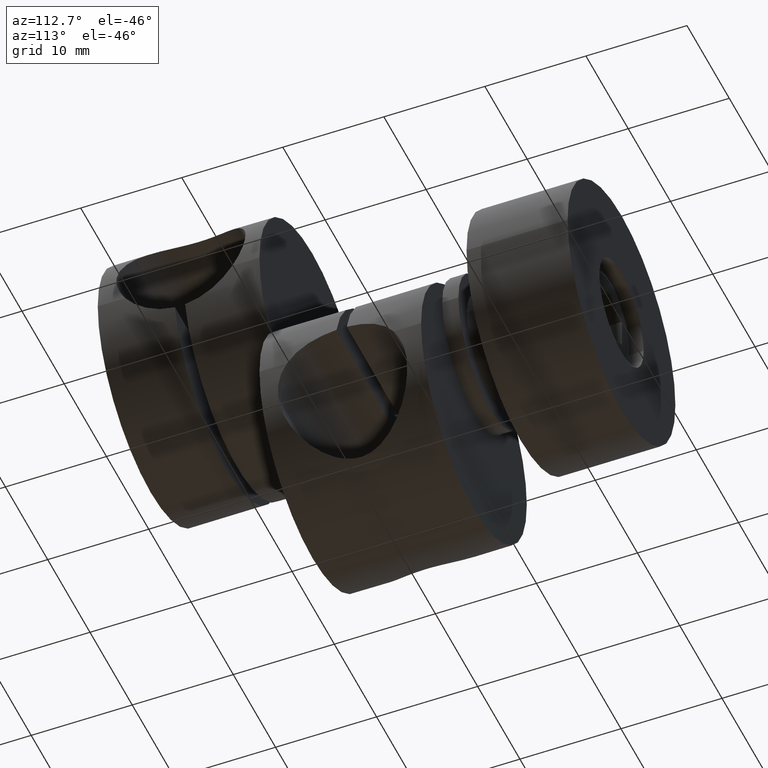
[diagram: clean part render]
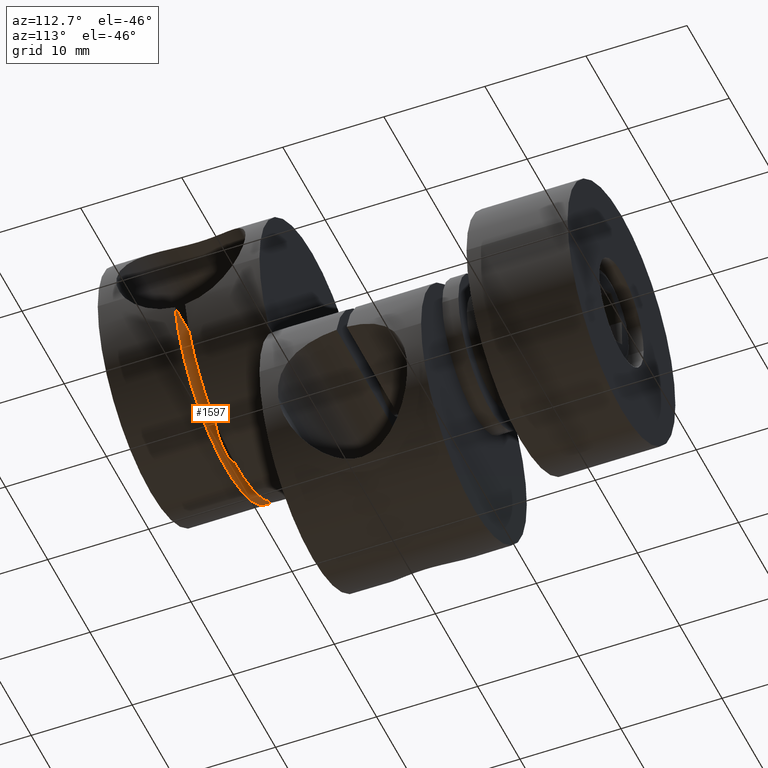
[diagram: same view with one face highlighted and labeled with its STEP entity id]
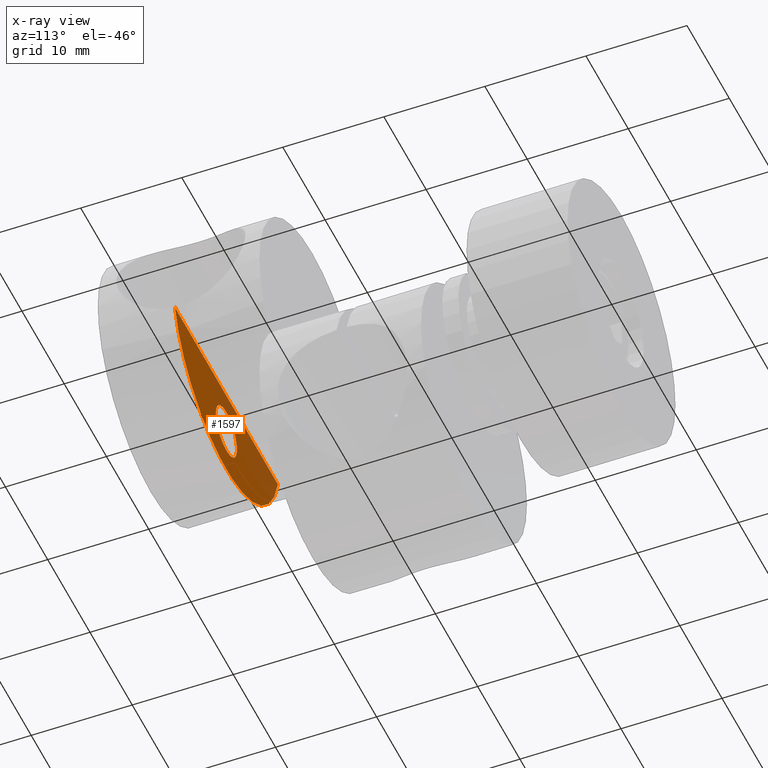
[diagram: x-ray of the same camera — body ghosted, the highlighted face saturated]
A machine part, auxiliary view. The second image highlights one B-rep face of the part: STEP entity #1597.
The next image is the same camera in x-ray: the body ghosted, the highlighted face saturated — about 35% of this face is hidden behind the body in this view.
In plain terms, the highlighted planar face has unit normal (0, -1, 0).
Its self-contained STEP definition (entity closure, byte-faithful):
#112 = EDGE_CURVE ( 'NONE', #1469, #1444, #537, .T. ) ;
#132 = DIRECTION ( 'NONE',  ( 0.0000000000000000000, -2.775557561562891400E-016, -1.000000000000000000 ) ) ;
#146 = ORIENTED_EDGE ( 'NONE', *, *, #1266, .F. ) ;
#273 = CARTESIAN_POINT ( 'NONE',  ( -12.50000000000000000, -16.49999999999997500, 2.499999999999998700 ) ) ;
#318 = CARTESIAN_POINT ( 'NONE',  ( 12.17536407983840800, -16.49999999999997900, 12.16971564619724300 ) ) ;
#321 = ORIENTED_EDGE ( 'NONE', *, *, #112, .T. ) ;
#386 = ORIENTED_EDGE ( 'NONE', *, *, #2374, .F. ) ;
#411 = AXIS2_PLACEMENT_3D ( 'NONE', #1970, #479, #1604 ) ;
#435 = EDGE_LOOP ( 'NONE', ( #321, #1303 ) ) ;
#476 = FACE_OUTER_BOUND ( 'NONE', #1335, .T. ) ;
#479 = DIRECTION ( 'NONE',  ( 3.204747427460359600E-031, -1.000000000000000000, 1.448853314571811500E-016 ) ) ;
#537 = CIRCLE ( 'NONE', #2191, 2.499999999999992900 ) ;
#820 = DIRECTION ( 'NONE',  ( 4.643208932641443900E-047, -1.448853314571811500E-016, -1.000000000000000000 ) ) ;
#866 = VERTEX_POINT ( 'NONE', #1901 ) ;
#997 = DIRECTION ( 'NONE',  ( 3.204747427460359600E-031, -1.000000000000000000, 1.448853314571811500E-016 ) ) ;
#1029 = CIRCLE ( 'NONE', #411, 2.499999999999992900 ) ;
#1046 = DIRECTION ( 'NONE',  ( 3.204747427460359600E-031, -1.000000000000000000, 1.448853314571811500E-016 ) ) ;
#1081 = CARTESIAN_POINT ( 'NONE',  ( 1.227001324156599000E-015, -16.49999999999997500, 7.500000000000000000 ) ) ;
#1217 = AXIS2_PLACEMENT_3D ( 'NONE', #2164, #1046, #132 ) ;
#1223 = PLANE ( 'NONE',  #2114 ) ;
#1266 = EDGE_CURVE ( 'NONE', #1980, #866, #1870, .T. ) ;
#1297 = CARTESIAN_POINT ( 'NONE',  ( 2.499999999999993800, -16.49999999999997500, 7.500000000000000000 ) ) ;
#1303 = ORIENTED_EDGE ( 'NONE', *, *, #2358, .T. ) ;
#1335 = EDGE_LOOP ( 'NONE', ( #386, #146 ) ) ;
#1444 = VERTEX_POINT ( 'NONE', #2204 ) ;
#1469 = VERTEX_POINT ( 'NONE', #1297 ) ;
#1597 = ADVANCED_FACE ( 'NONE', ( #2386, #476 ), #1223, .F. ) ;
#1604 = DIRECTION ( 'NONE',  ( 0.0000000000000000000, 0.0000000000000000000, -1.000000000000000000 ) ) ;
#1609 = CARTESIAN_POINT ( 'NONE',  ( -12.50000000000000000, -16.49999999999997500, 12.16971564619724300 ) ) ;
#1645 = DIRECTION ( 'NONE',  ( 3.204747427460359600E-031, -1.000000000000000000, 1.448853314571811500E-016 ) ) ;
#1793 = DIRECTION ( 'NONE',  ( -1.000000000000000000, -3.204747427460359600E-031, 1.361284592032124700E-061 ) ) ;
#1870 = LINE ( 'NONE', #1609, #2072 ) ;
#1901 = CARTESIAN_POINT ( 'NONE',  ( -12.17536407983840600, -16.49999999999997500, 12.16971564619724300 ) ) ;
#1970 = CARTESIAN_POINT ( 'NONE',  ( 1.227001324156599000E-015, -16.49999999999997500, 7.500000000000000000 ) ) ;
#1980 = VERTEX_POINT ( 'NONE', #318 ) ;
#2013 = CIRCLE ( 'NONE', #1217, 12.50000000000000000 ) ;
#2072 = VECTOR ( 'NONE', #1793, 1000.000000000000000 ) ;
#2114 = AXIS2_PLACEMENT_3D ( 'NONE', #273, #997, #820 ) ;
#2164 = CARTESIAN_POINT ( 'NONE',  ( 1.427991516710932600E-016, -16.50000000000000000, 15.00000000000000000 ) ) ;
#2191 = AXIS2_PLACEMENT_3D ( 'NONE', #1081, #1645, #2381 ) ;
#2204 = CARTESIAN_POINT ( 'NONE',  ( -2.499999999999991600, -16.49999999999997500, 7.500000000000000000 ) ) ;
#2358 = EDGE_CURVE ( 'NONE', #1444, #1469, #1029, .T. ) ;
#2374 = EDGE_CURVE ( 'NONE', #866, #1980, #2013, .T. ) ;
#2381 = DIRECTION ( 'NONE',  ( 0.0000000000000000000, 0.0000000000000000000, -1.000000000000000000 ) ) ;
#2386 = FACE_BOUND ( 'NONE', #435, .T. ) ;